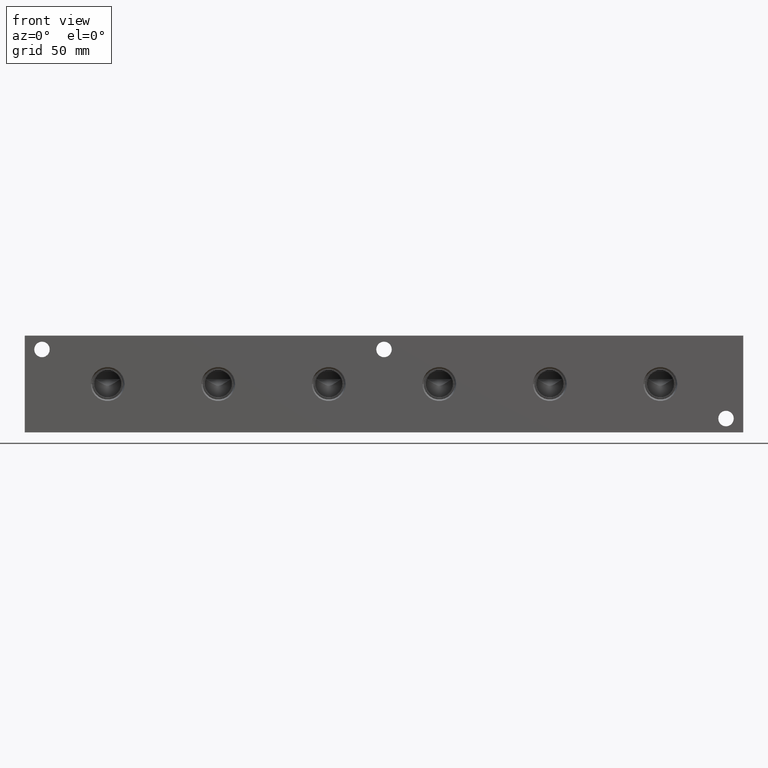
[diagram: clean part render]
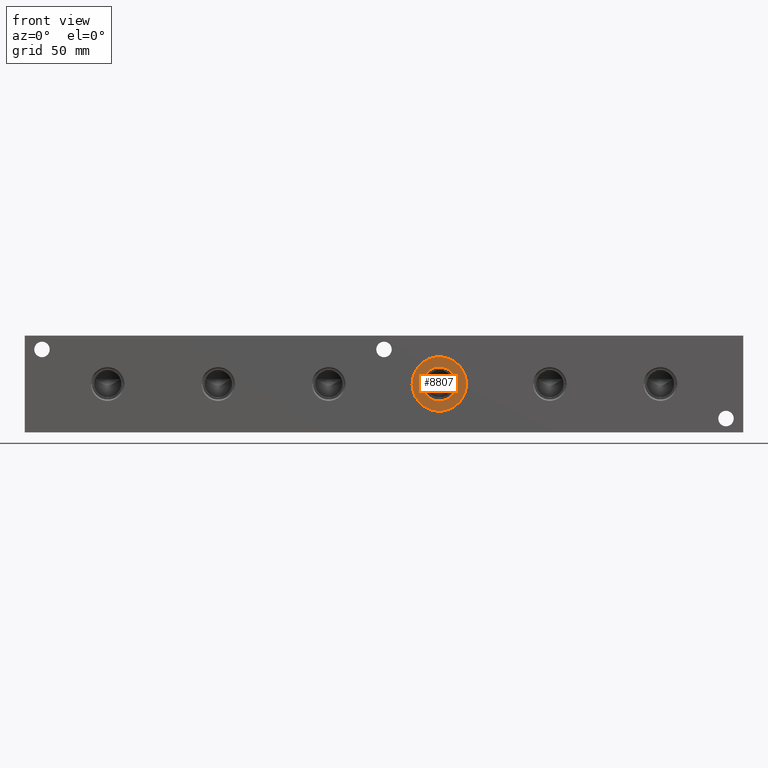
[diagram: same view with one face highlighted and labeled with its STEP entity id]
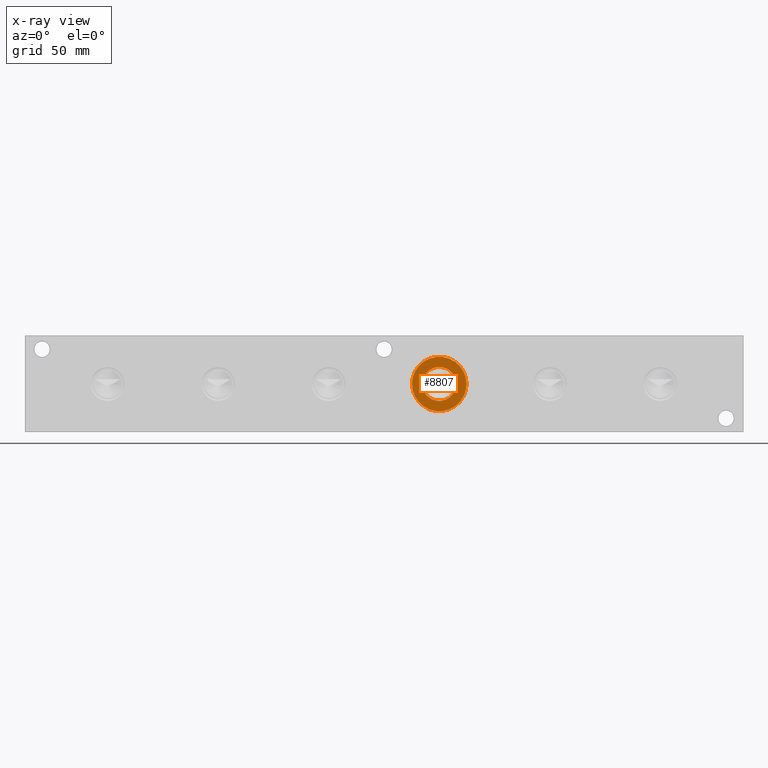
[diagram: x-ray of the same camera — body ghosted, the highlighted face saturated]
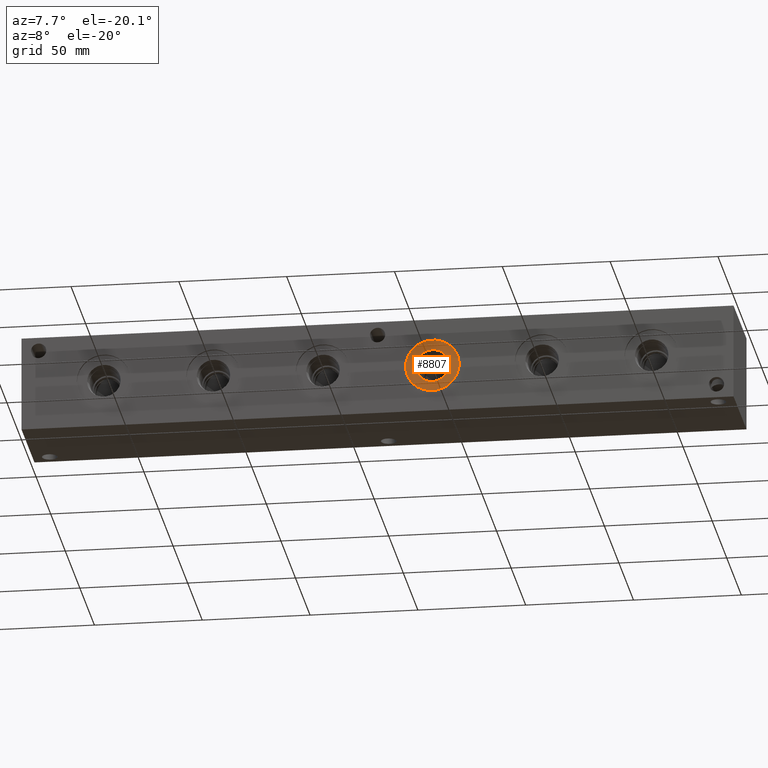
[diagram: same view with one face highlighted and labeled with its STEP entity id]
A machine part, front view. The second image highlights one B-rep face of the part: STEP entity #8807.
The next image is the same camera in x-ray: the body ghosted, the highlighted face saturated — about 0% of this face is hidden behind the body in this view.
A second angle (auxiliary view) of the same face is appended — the face is thin or edge-on in the first view.
In plain terms, the highlighted planar face has unit normal (0, 1, 0).
Its self-contained STEP definition (entity closure, byte-faithful):
#203=CIRCLE('',#9198,12.5095);
#204=CIRCLE('',#9199,12.5095);
#205=CIRCLE('',#9201,7.79779999999999);
#206=CIRCLE('',#9202,7.79779999999999);
#437=FACE_BOUND('',#1745,.T.);
#1233=FACE_OUTER_BOUND('',#1744,.T.);
#1744=EDGE_LOOP('',(#7257,#7258));
#1745=EDGE_LOOP('',(#7259,#7260));
#3956=VERTEX_POINT('',#15097);
#3957=VERTEX_POINT('',#15099);
#3958=VERTEX_POINT('',#15103);
#3959=VERTEX_POINT('',#15104);
#5095=EDGE_CURVE('',#3956,#3957,#203,.T.);
#5096=EDGE_CURVE('',#3957,#3956,#204,.T.);
#5097=EDGE_CURVE('',#3958,#3959,#205,.T.);
#5098=EDGE_CURVE('',#3959,#3958,#206,.T.);
#7257=ORIENTED_EDGE('',*,*,#5096,.F.);
#7258=ORIENTED_EDGE('',*,*,#5095,.F.);
#7259=ORIENTED_EDGE('',*,*,#5097,.T.);
#7260=ORIENTED_EDGE('',*,*,#5098,.T.);
#8135=PLANE('',#9200);
#8807=ADVANCED_FACE('',(#1233,#437),#8135,.F.);
#9198=AXIS2_PLACEMENT_3D('',#15100,#10659,#10660);
#9199=AXIS2_PLACEMENT_3D('',#15101,#10661,#10662);
#9200=AXIS2_PLACEMENT_3D('',#15102,#10663,#10664);
#9201=AXIS2_PLACEMENT_3D('',#15105,#10665,#10666);
#9202=AXIS2_PLACEMENT_3D('',#15106,#10667,#10668);
#10659=DIRECTION('center_axis',(0.,1.,0.));
#10660=DIRECTION('ref_axis',(1.,0.,0.));
#10661=DIRECTION('center_axis',(0.,1.,0.));
#10662=DIRECTION('ref_axis',(1.,0.,0.));
#10663=DIRECTION('center_axis',(0.,1.,0.));
#10664=DIRECTION('ref_axis',(0.,0.,1.));
#10665=DIRECTION('center_axis',(0.,1.,0.));
#10666=DIRECTION('ref_axis',(1.,0.,0.));
#10667=DIRECTION('center_axis',(0.,1.,0.));
#10668=DIRECTION('ref_axis',(1.,0.,0.));
#15097=CARTESIAN_POINT('',(177.9905,0.7874,22.225));
#15099=CARTESIAN_POINT('',(203.0095,0.7874,22.225));
#15100=CARTESIAN_POINT('Origin',(190.5,0.7874,22.225));
#15101=CARTESIAN_POINT('Origin',(190.5,0.7874,22.225));
#15102=CARTESIAN_POINT('Origin',(198.2978,0.7874,22.225));
#15103=CARTESIAN_POINT('',(198.2978,0.7874,22.225));
#15104=CARTESIAN_POINT('',(182.7022,0.7874,22.225));
#15105=CARTESIAN_POINT('Origin',(190.5,0.7874,22.225));
#15106=CARTESIAN_POINT('Origin',(190.5,0.7874,22.225));